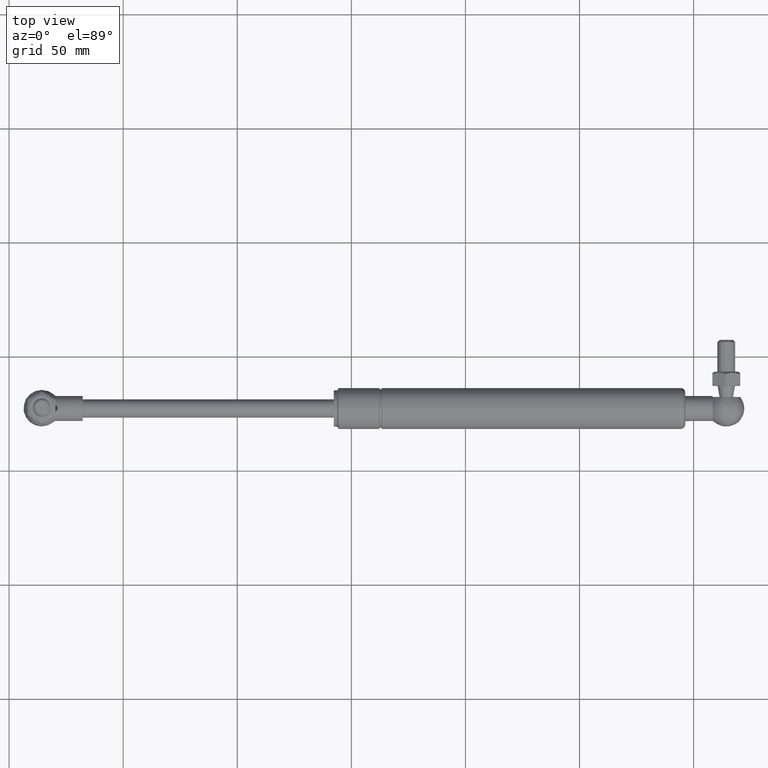
[diagram: clean part render]
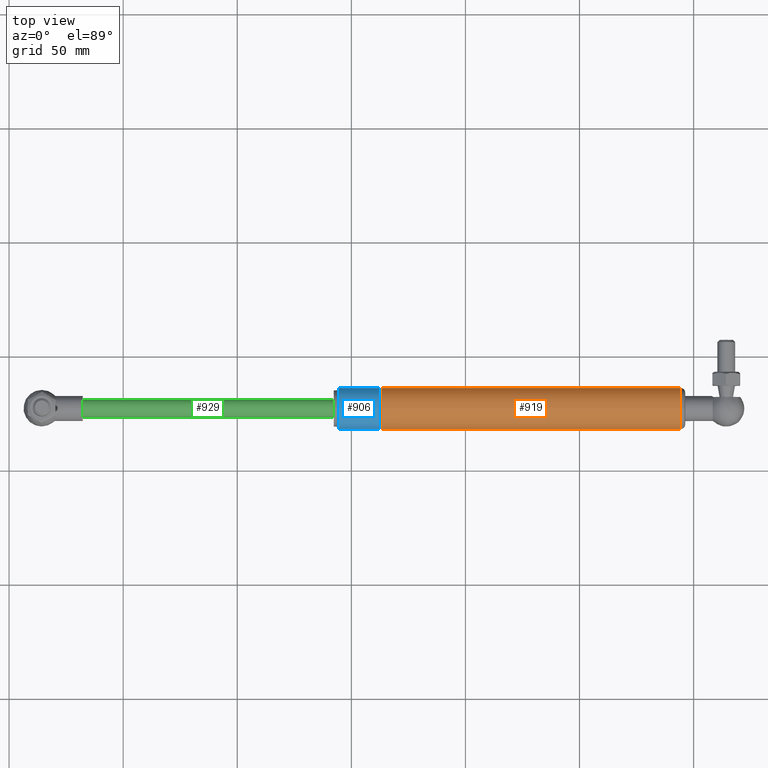
[diagram: same view with three faces highlighted in distinct colors, each labeled with its STEP entity id]
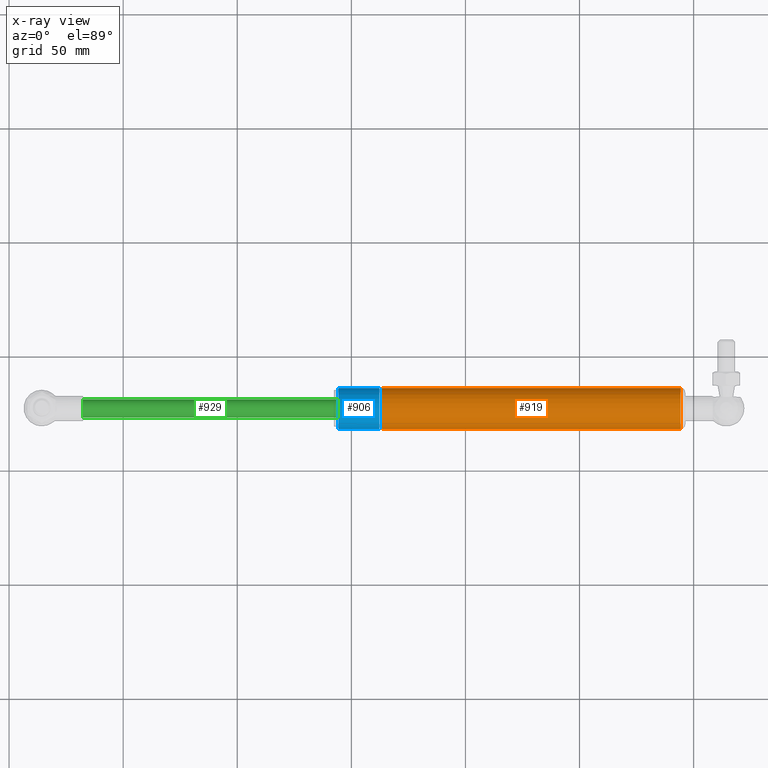
[diagram: x-ray of the same camera — body ghosted, the three highlighted faces saturated]
A machine part, top view with three faces highlighted in distinct colors.
The next image is the same camera in x-ray (body ghosted, the three faces saturated) — at least one of them is partly hidden behind the body in this view.
Their STEP definitions:

[orange] entity #919 — the highlighted cylindrical surface (bore or boss wall) has radius 9 mm, axis along (1, 0, -0).
#139=CYLINDRICAL_SURFACE('',#1017,9.00000000000001);
#171=FACE_BOUND('',#306,.T.);
#220=FACE_OUTER_BOUND('',#305,.T.);
#305=EDGE_LOOP('',(#660));
#306=EDGE_LOOP('',(#661));
#387=CIRCLE('',#980,9.00000000000001);
#405=CIRCLE('',#1015,9.00000000000001);
#446=VERTEX_POINT('',#1439);
#464=VERTEX_POINT('',#1492);
#526=EDGE_CURVE('',#446,#446,#387,.T.);
#544=EDGE_CURVE('',#464,#464,#405,.T.);
#660=ORIENTED_EDGE('',*,*,#526,.T.);
#661=ORIENTED_EDGE('',*,*,#544,.F.);
#919=ADVANCED_FACE('',(#220,#171),#139,.T.);
#980=AXIS2_PLACEMENT_3D('',#1440,#1128,#1129);
#1015=AXIS2_PLACEMENT_3D('',#1493,#1198,#1199);
#1017=AXIS2_PLACEMENT_3D('',#1496,#1202,#1203);
#1128=DIRECTION('center_axis',(1.,0.,-1.20871055100319E-16));
#1129=DIRECTION('ref_axis',(1.22464679914735E-16,0.,1.));
#1198=DIRECTION('center_axis',(1.,0.,-1.22464679914735E-16));
#1199=DIRECTION('ref_axis',(-1.2335811384724E-16,-1.22464679914735E-16,
-1.));
#1202=DIRECTION('center_axis',(1.,0.,-1.22464679914735E-16));
#1203=DIRECTION('ref_axis',(1.22464679914735E-16,0.,1.));
#1439=CARTESIAN_POINT('',(21.,1.10218211923262E-15,-9.00000000000002));
#1440=CARTESIAN_POINT('Origin',(21.,0.,-2.57175827820944E-15));
#1492=CARTESIAN_POINT('',(152.,0.,9.));
#1493=CARTESIAN_POINT('Origin',(152.,0.,-1.86146313470398E-14));
#1496=CARTESIAN_POINT('Origin',(77.9999999999999,0.,-9.55224503334935E-15));

[blue] entity #906 — the highlighted cylindrical surface (bore or boss wall) has radius 9 mm, axis along (1, 0, -0).
#133=CYLINDRICAL_SURFACE('',#990,9.00000000000001);
#160=FACE_BOUND('',#282,.T.);
#207=FACE_OUTER_BOUND('',#281,.T.);
#281=EDGE_LOOP('',(#636));
#282=EDGE_LOOP('',(#637));
#392=CIRCLE('',#989,9.00000000000001);
#393=CIRCLE('',#991,9.00000000000003);
#451=VERTEX_POINT('',#1453);
#452=VERTEX_POINT('',#1456);
#531=EDGE_CURVE('',#451,#451,#392,.T.);
#532=EDGE_CURVE('',#452,#452,#393,.T.);
#636=ORIENTED_EDGE('',*,*,#532,.T.);
#637=ORIENTED_EDGE('',*,*,#531,.T.);
#906=ADVANCED_FACE('',(#207,#160),#133,.T.);
#989=AXIS2_PLACEMENT_3D('',#1454,#1146,#1147);
#990=AXIS2_PLACEMENT_3D('',#1455,#1148,#1149);
#991=AXIS2_PLACEMENT_3D('',#1457,#1150,#1151);
#1146=DIRECTION('center_axis',(-1.,0.,1.20871055100319E-16));
#1147=DIRECTION('ref_axis',(1.22464679914735E-16,0.,1.));
#1148=DIRECTION('center_axis',(1.,0.,-1.22464679914735E-16));
#1149=DIRECTION('ref_axis',(1.22464679914735E-16,0.,1.));
#1150=DIRECTION('center_axis',(1.,0.,-1.22464679914735E-16));
#1151=DIRECTION('ref_axis',(1.22464679914735E-16,0.,1.));
#1453=CARTESIAN_POINT('',(20.,-1.10218211923262E-15,-9.00000000000002));
#1454=CARTESIAN_POINT('Origin',(20.,0.,-2.44929359829471E-15));
#1455=CARTESIAN_POINT('Origin',(77.9999999999999,0.,-9.55224503334935E-15));
#1456=CARTESIAN_POINT('',(1.99999999999989,0.,9.00000000000003));
#1457=CARTESIAN_POINT('Origin',(1.99999999999989,0.,-2.44929359829457E-16));

[green] entity #929 — the highlighted cylindrical surface (bore or boss wall) has radius 4 mm, axis along (-1, 0, -0).
#142=CYLINDRICAL_SURFACE('',#1035,4.00000000000001);
#179=FACE_BOUND('',#324,.T.);
#230=FACE_OUTER_BOUND('',#323,.T.);
#323=EDGE_LOOP('',(#678));
#324=EDGE_LOOP('',(#679));
#410=CIRCLE('',#1028,4.00000000000001);
#412=CIRCLE('',#1031,4.);
#469=VERTEX_POINT('',#1510);
#471=VERTEX_POINT('',#1515);
#549=EDGE_CURVE('',#469,#469,#410,.T.);
#551=EDGE_CURVE('',#471,#471,#412,.T.);
#678=ORIENTED_EDGE('',*,*,#549,.T.);
#679=ORIENTED_EDGE('',*,*,#551,.T.);
#929=ADVANCED_FACE('',(#230,#179),#142,.T.);
#1028=AXIS2_PLACEMENT_3D('',#1511,#1224,#1225);
#1031=AXIS2_PLACEMENT_3D('',#1516,#1230,#1231);
#1035=AXIS2_PLACEMENT_3D('',#1521,#1238,#1239);
#1224=DIRECTION('center_axis',(1.,0.,0.));
#1225=DIRECTION('ref_axis',(0.,0.,1.));
#1230=DIRECTION('center_axis',(-1.,0.,0.));
#1231=DIRECTION('ref_axis',(0.,0.,1.));
#1238=DIRECTION('center_axis',(-1.,0.,0.));
#1239=DIRECTION('ref_axis',(0.,0.,1.));
#1510=CARTESIAN_POINT('',(0.,4.89858719658942E-16,4.00000000000001));
#1511=CARTESIAN_POINT('Origin',(0.,0.,0.));
#1515=CARTESIAN_POINT('',(120.,0.,4.));
#1516=CARTESIAN_POINT('Origin',(120.,0.,0.));
#1521=CARTESIAN_POINT('Origin',(60.,0.,0.));